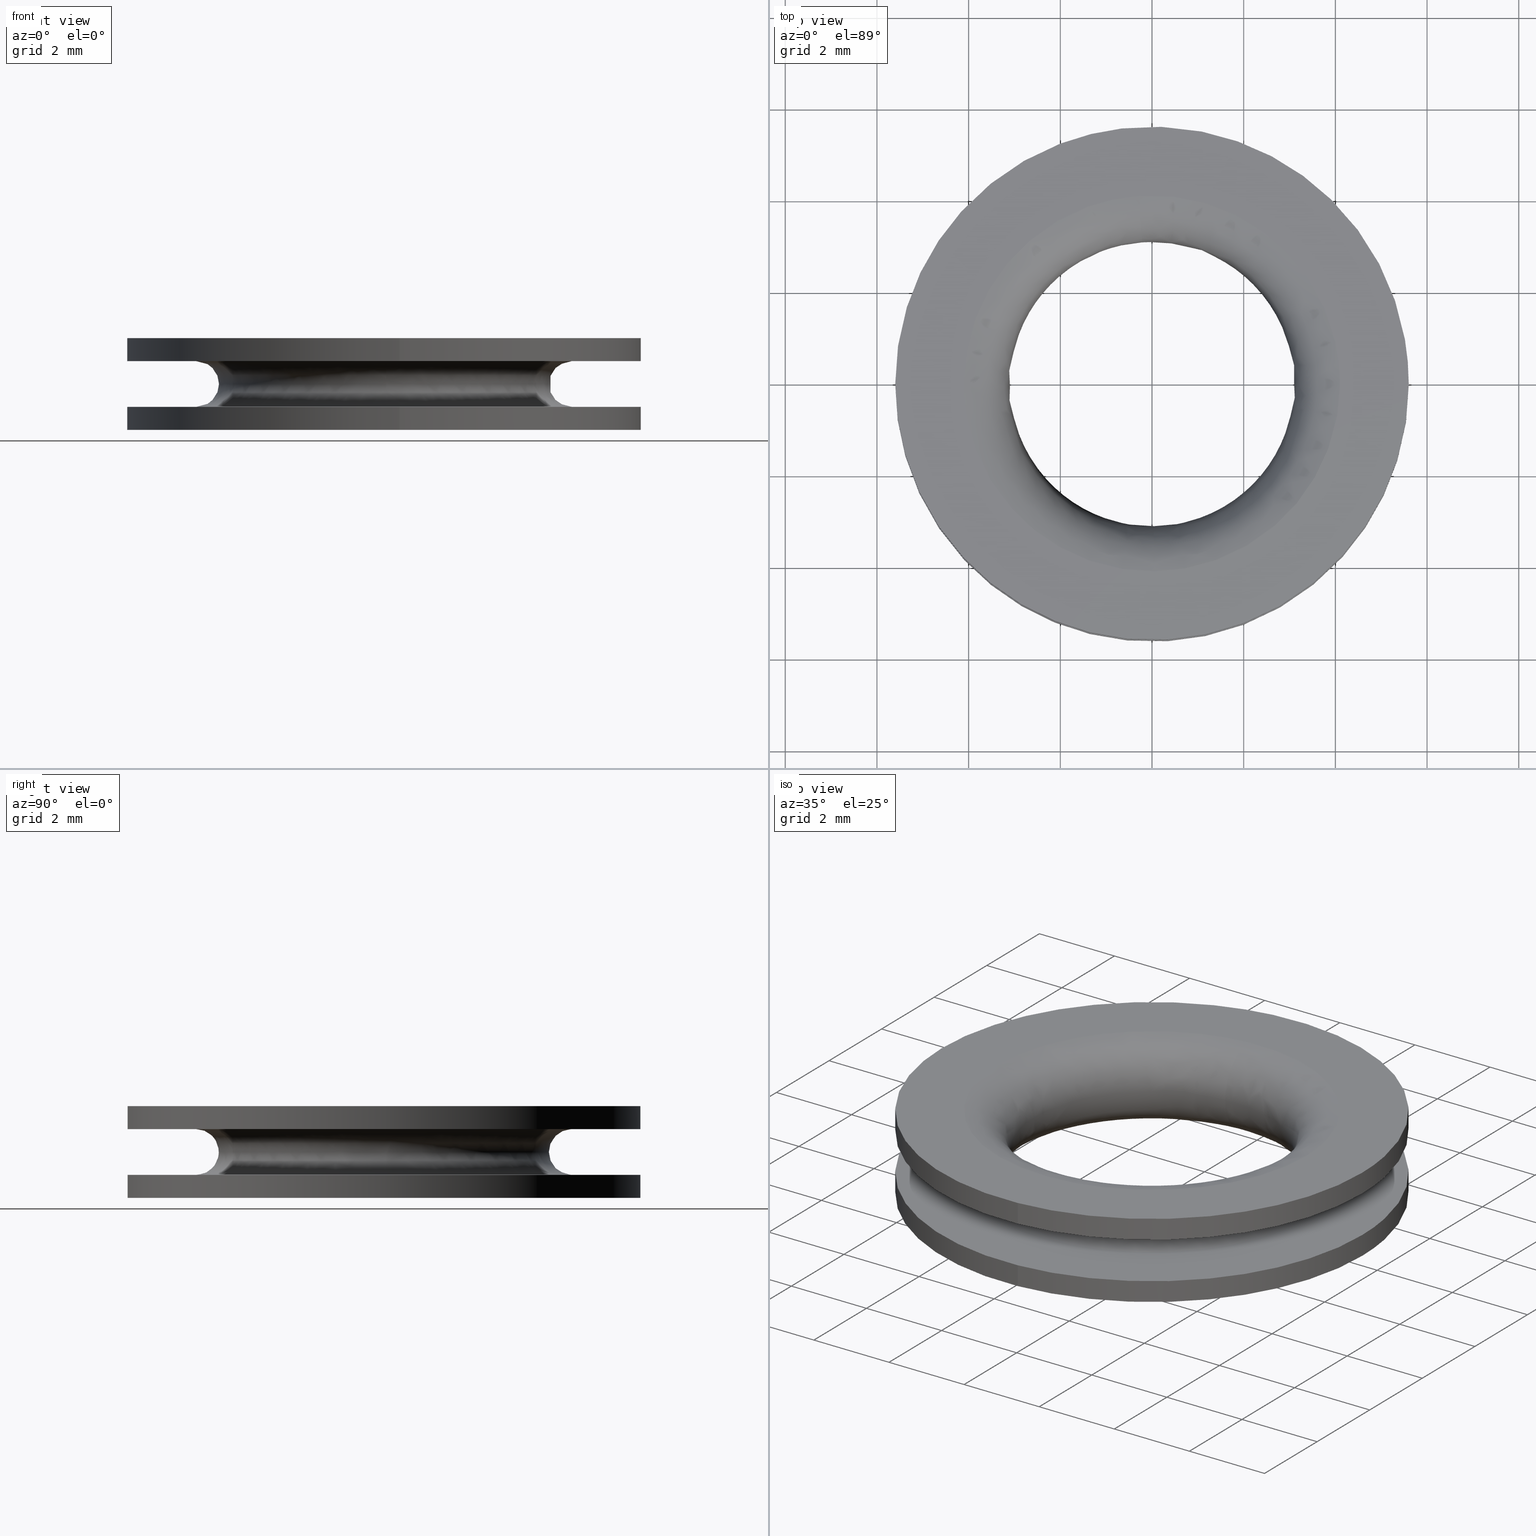
[diagram: canonical four-view strip — front | top / right | iso, engineering-drawing reading convention]
A machine part, canonical four-view strip (front | top / right | iso — engineering-drawing reading convention). The complete STEP part file that produces these views, byte-faithful:
ISO-10303-21;
HEADER;
/****************************************************************
 * Generated by software with PDE/Lib inside                    *
 * PDElib Version 4.4.1-0003, patched  Thursday August 19 11:58 *
 * International Technegroup Inc. (www.iti-oh.com)              *
 ****************************************************************/
FILE_DESCRIPTION((''),'2;1');
FILE_NAME('','2005-07-15T13:06:39',(''),(''),'','CADfix','');
FILE_SCHEMA(('AUTOMOTIVE_DESIGN'));
ENDSEC;
DATA;
#5=APPLICATION_CONTEXT('automotive design');
#6=APPLICATION_PROTOCOL_DEFINITION('Draft International Standard','automotive_design',1998,#5);
#7=PRODUCT_CONTEXT('None',#5,'mechanical');
#8=PRODUCT('grommet','','None',(#7));
#9=PRODUCT_RELATED_PRODUCT_CATEGORY('part','description',(#8));
#10=PRODUCT_DEFINITION_FORMATION('None','None',#8);
#11=PRODUCT_DEFINITION_CONTEXT('part definition',#5,'design');
#12=PRODUCT_DEFINITION('None','None',#10,#11);
#18=(NAMED_UNIT(*)PLANE_ANGLE_UNIT()SI_UNIT($,.RADIAN.));
#19=DIMENSIONAL_EXPONENTS(0.0,0.0,0.0,0.0,0.0,0.0,0.0);
#20=PLANE_ANGLE_MEASURE_WITH_UNIT(PLANE_ANGLE_MEASURE(0.017453292500000),#18);
#24=(CONVERSION_BASED_UNIT('DEGREE',#20)NAMED_UNIT(#19)PLANE_ANGLE_UNIT());
#28=(NAMED_UNIT(*)SI_UNIT($,.STERADIAN.)SOLID_ANGLE_UNIT());
#32=(LENGTH_UNIT()NAMED_UNIT(*)SI_UNIT(.MILLI.,.METRE.));
#34=UNCERTAINTY_MEASURE_WITH_UNIT(LENGTH_MEASURE(0.001000000000000),#32,'DISTANCE_ACCURACY_VALUE','');
#36=(GEOMETRIC_REPRESENTATION_CONTEXT(3)GLOBAL_UNCERTAINTY_ASSIGNED_CONTEXT((#34))GLOBAL_UNIT_ASSIGNED_CONTEXT((#24,#28,#32))REPRESENTATION_CONTEXT('None','None'));
#37=AXIS2_PLACEMENT_3D('',#38,#39,#40);
#38=CARTESIAN_POINT('',(0.0,0.0,0.0));
#39=DIRECTION('',(0.0,0.0,1.0));
#40=DIRECTION('',(1.0,0.0,0.0));
#41=ADVANCED_BREP_SHAPE_REPRESENTATION('',(#37,#973),#36);
#42=PRODUCT_DEFINITION_SHAPE('','',#12);
#43=SHAPE_DEFINITION_REPRESENTATION(#42,#41);
#44=CARTESIAN_POINT('',(-0.660991714077847,5.560853347636532,2.012500000000001));
#45=CARTESIAN_POINT('',(-0.501842480372675,5.579770646512191,2.012500000000000));
#46=CARTESIAN_POINT('',(-0.341871821395199,5.589554871162453,2.012500000000000));
#47=CARTESIAN_POINT('',(5.247683049767254,5.931426692557652,2.012500000000000));
#48=CARTESIAN_POINT('',(5.589554871162453,0.341871821395199,2.012500000000000));
#49=CARTESIAN_POINT('',(5.931426692557652,-5.247683049767254,2.012500000000000));
#50=CARTESIAN_POINT('',(0.341871821395199,-5.589554871162453,2.012500000000000));
#51=CARTESIAN_POINT('',(-0.660991714077847,5.560853347636532,1.487187500000000));
#52=CARTESIAN_POINT('',(-0.501842480372675,5.579770646512191,1.487187499999999));
#53=CARTESIAN_POINT('',(-0.341871821395199,5.589554871162453,1.487187500000000));
#54=CARTESIAN_POINT('',(5.247683049767254,5.931426692557652,1.487187499999999));
#55=CARTESIAN_POINT('',(5.589554871162453,0.341871821395199,1.487187500000000));
#56=CARTESIAN_POINT('',(5.931426692557652,-5.247683049767254,1.487187499999999));
#57=CARTESIAN_POINT('',(0.341871821395199,-5.589554871162453,1.487187500000000));
#65=(BOUNDED_SURFACE()B_SPLINE_SURFACE(2,1,((#44,#51),(#45,#52),(#46,#53),(#47,#54),(#48,#55),(#49,#56),(#50,#57)),.UNSPECIFIED.,.F.,.F.,.U.)B_SPLINE_SURFACE_WITH_KNOTS((3,2,2,3),(2,2),(0.0,0.371135351886293,9.649519149043620,18.927902946200948),(0.0,1.0),.UNSPECIFIED.)GEOMETRIC_REPRESENTATION_ITEM()RATIONAL_B_SPLINE_SURFACE(((0.977505800795127,0.977505800795127),(0.988284271247462,0.988284271247462),(1.0,1.0),(0.707106781186548,0.707106781186548),(1.0,1.0),(0.707106781186548,0.707106781186548),(1.0,1.0)))REPRESENTATION_ITEM('')SURFACE());
#66=CARTESIAN_POINT('',(-0.660988172948716,5.560853768551120,1.500000000000061));
#67=VERTEX_POINT('',#66);
#68=CARTESIAN_POINT('',(5.600000000000000,0.0,1.500000000000000));
#69=VERTEX_POINT('',#68);
#70=CARTESIAN_POINT('',(-0.660988172948716,5.560853768551120,1.500000000000060));
#71=CARTESIAN_POINT('',(-0.331653280768118,5.600000000000001,1.500000000000000));
#72=CARTESIAN_POINT('',(0.0,5.600000000000000,1.500000000000000));
#73=CARTESIAN_POINT('',(5.599999999999999,5.599999999999999,1.500000000000000));
#74=CARTESIAN_POINT('',(5.600000000000000,0.0,1.500000000000000));
#82=(BOUNDED_CURVE()B_SPLINE_CURVE(2,(#70,#71,#72,#73,#74),.UNSPECIFIED.,.F.,.U.)B_SPLINE_CURVE_WITH_KNOTS((3,2,3),(0.229562581136241,0.250000000000000,0.500000000000000),.UNSPECIFIED.)CURVE()GEOMETRIC_REPRESENTATION_ITEM()RATIONAL_B_SPLINE_CURVE((0.956026965128767,0.976056074419019,1.0,0.707106781186547,1.0))REPRESENTATION_ITEM(''));
#83=EDGE_CURVE('',#67,#69,#82,.T.);
#84=ORIENTED_EDGE('',*,*,#83,.F.);
#85=CARTESIAN_POINT('',(-0.660988216627040,5.560853763359345,2.0));
#86=VERTEX_POINT('',#85);
#87=CARTESIAN_POINT('',(-0.660988216627040,5.560853763359345,2.0));
#88=CARTESIAN_POINT('',(-0.660988172948716,5.560853768551120,1.500000000000061));
#89=QUASI_UNIFORM_CURVE('',1,(#87,#88),.UNSPECIFIED.,.F.,.U.);
#90=EDGE_CURVE('',#86,#67,#89,.T.);
#91=ORIENTED_EDGE('',*,*,#90,.F.);
#92=CARTESIAN_POINT('',(5.600000000000000,0.0,2.0));
#93=VERTEX_POINT('',#92);
#94=CARTESIAN_POINT('',(-0.660988216627040,5.560853763359345,2.000000000000000));
#95=CARTESIAN_POINT('',(-0.331653302838156,5.600000000000000,2.000000000000000));
#96=CARTESIAN_POINT('',(0.0,5.600000000000000,2.0));
#97=CARTESIAN_POINT('',(5.599999999999999,5.599999999999999,2.0));
#98=CARTESIAN_POINT('',(5.600000000000000,0.0,2.0));
#106=(BOUNDED_CURVE()B_SPLINE_CURVE(2,(#94,#95,#96,#97,#98),.UNSPECIFIED.,.F.,.U.)B_SPLINE_CURVE_WITH_KNOTS((3,2,3),(0.229562579808786,0.250000000000000,0.500000000000000),.UNSPECIFIED.)CURVE()GEOMETRIC_REPRESENTATION_ITEM()RATIONAL_B_SPLINE_CURVE((0.956026962526900,0.976056072863809,1.0,0.707106781186547,1.0))REPRESENTATION_ITEM(''));
#107=EDGE_CURVE('',#86,#93,#106,.T.);
#108=ORIENTED_EDGE('',*,*,#107,.T.);
#109=CARTESIAN_POINT('',(0.341869845843835,-5.589554991991651,2.0));
#110=VERTEX_POINT('',#109);
#111=CARTESIAN_POINT('',(5.600000000000000,0.0,2.0));
#112=CARTESIAN_POINT('',(5.600000000000000,-5.267955840037390,2.0));
#113=CARTESIAN_POINT('',(0.341869845843835,-5.589554991991651,2.0));
#121=(BOUNDED_CURVE()B_SPLINE_CURVE(2,(#111,#112,#113),.UNSPECIFIED.,.F.,.U.)B_SPLINE_CURVE_WITH_KNOTS((3,3),(0.500000000000000,0.739333023226263),.UNSPECIFIED.)CURVE()GEOMETRIC_REPRESENTATION_ITEM()RATIONAL_B_SPLINE_CURVE((1.0,0.719603921835620,0.976072172374189))REPRESENTATION_ITEM(''));
#122=EDGE_CURVE('',#93,#110,#121,.T.);
#123=ORIENTED_EDGE('',*,*,#122,.T.);
#124=CARTESIAN_POINT('',(0.341869821183099,-5.589554993499949,1.500000000000040));
#125=VERTEX_POINT('',#124);
#126=CARTESIAN_POINT('',(0.341869845843835,-5.589554991991651,2.0));
#127=CARTESIAN_POINT('',(0.341869821183099,-5.589554993499949,1.500000000000040));
#128=QUASI_UNIFORM_CURVE('',1,(#126,#127),.UNSPECIFIED.,.F.,.U.);
#129=EDGE_CURVE('',#110,#125,#128,.T.);
#130=ORIENTED_EDGE('',*,*,#129,.T.);
#131=CARTESIAN_POINT('',(5.600000000000000,0.0,1.500000000000000));
#132=CARTESIAN_POINT('',(5.600000000000001,-5.267955863322681,1.499999999999999));
#133=CARTESIAN_POINT('',(0.341869821183099,-5.589554993499949,1.500000000000040));
#141=(BOUNDED_CURVE()B_SPLINE_CURVE(2,(#131,#132,#133),.UNSPECIFIED.,.F.,.U.)B_SPLINE_CURVE_WITH_KNOTS((3,3),(0.500000000000000,0.739333023987528),.UNSPECIFIED.)CURVE()GEOMETRIC_REPRESENTATION_ITEM()RATIONAL_B_SPLINE_CURVE((1.0,0.719603920943743,0.976072174005725))REPRESENTATION_ITEM(''));
#142=EDGE_CURVE('',#69,#125,#141,.T.);
#143=ORIENTED_EDGE('',*,*,#142,.F.);
#144=EDGE_LOOP('',(#84,#91,#108,#123,#130,#143));
#145=FACE_OUTER_BOUND('',#144,.T.);
#146=ADVANCED_FACE('',(#145),#65,.T.);
#147=CARTESIAN_POINT('',(0.341871821395199,-5.589554871162453,2.012500000000000));
#148=CARTESIAN_POINT('',(-5.247683049767254,-5.931426692557652,2.012500000000000));
#149=CARTESIAN_POINT('',(-5.589554871162453,-0.341871821395199,2.012500000000000));
#150=CARTESIAN_POINT('',(-5.912402701702153,4.936643548701205,2.012500000000000));
#151=CARTESIAN_POINT('',(-0.660991714077847,5.560853347636532,2.012500000000001));
#152=CARTESIAN_POINT('',(0.341871821395199,-5.589554871162453,1.487187500000000));
#153=CARTESIAN_POINT('',(-5.247683049767254,-5.931426692557652,1.487187499999999));
#154=CARTESIAN_POINT('',(-5.589554871162453,-0.341871821395199,1.487187500000000));
#155=CARTESIAN_POINT('',(-5.912402701702153,4.936643548701205,1.487187500000000));
#156=CARTESIAN_POINT('',(-0.660991714077847,5.560853347636532,1.487187500000000));
#164=(BOUNDED_SURFACE()B_SPLINE_SURFACE(2,1,((#147,#152),(#148,#153),(#149,#154),(#150,#155),(#151,#156)),.UNSPECIFIED.,.F.,.F.,.U.)B_SPLINE_SURFACE_WITH_KNOTS((3,2,3),(2,2),(0.0,9.278383797157327,18.185632242428358),(0.0,1.0),.UNSPECIFIED.)GEOMETRIC_REPRESENTATION_ITEM()RATIONAL_B_SPLINE_SURFACE(((1.0,1.0),(0.707106781186548,0.707106781186548),(1.0,1.0),(0.718822509939086,0.718822509939086),(0.977505800795127,0.977505800795127)))REPRESENTATION_ITEM('')SURFACE());
#165=CARTESIAN_POINT('',(-5.600000000000000,0.0,1.500000000000000));
#166=VERTEX_POINT('',#165);
#167=CARTESIAN_POINT('',(-5.600000000000000,0.0,1.500000000000000));
#168=CARTESIAN_POINT('',(-5.600000000000000,4.973780534906465,1.500000000000000));
#169=CARTESIAN_POINT('',(-0.660988172948716,5.560853768551120,1.500000000000060));
#177=(BOUNDED_CURVE()B_SPLINE_CURVE(2,(#167,#168,#169),.UNSPECIFIED.,.F.,.U.)B_SPLINE_CURVE_WITH_KNOTS((3,3),(0.0,0.229562581136241),.UNSPECIFIED.)CURVE()GEOMETRIC_REPRESENTATION_ITEM()RATIONAL_B_SPLINE_CURVE((1.0,0.731050706767529,0.956026965128767))REPRESENTATION_ITEM(''));
#178=EDGE_CURVE('',#166,#67,#177,.T.);
#179=ORIENTED_EDGE('',*,*,#178,.F.);
#180=CARTESIAN_POINT('',(0.341869821183099,-5.589554993499949,1.500000000000040));
#181=CARTESIAN_POINT('',(0.171094471561875,-5.600000000000000,1.500000000000000));
#182=CARTESIAN_POINT('',(0.0,-5.600000000000000,1.500000000000000));
#183=CARTESIAN_POINT('',(-5.599999999999999,-5.599999999999999,1.500000000000000));
#184=CARTESIAN_POINT('',(-5.600000000000000,0.0,1.500000000000000));
#192=(BOUNDED_CURVE()B_SPLINE_CURVE(2,(#180,#181,#182,#183,#184),.UNSPECIFIED.,.F.,.U.)B_SPLINE_CURVE_WITH_KNOTS((3,2,3),(0.739333023987528,0.750000000000000,1.0),.UNSPECIFIED.)CURVE()GEOMETRIC_REPRESENTATION_ITEM()RATIONAL_B_SPLINE_CURVE((0.976072174005725,0.987502860242804,1.0,0.707106781186547,1.0))REPRESENTATION_ITEM(''));
#193=EDGE_CURVE('',#125,#166,#192,.T.);
#194=ORIENTED_EDGE('',*,*,#193,.F.);
#195=ORIENTED_EDGE('',*,*,#129,.F.);
#196=CARTESIAN_POINT('',(-5.600000000000000,0.0,2.0));
#197=VERTEX_POINT('',#196);
#198=CARTESIAN_POINT('',(0.341869845843835,-5.589554991991651,2.0));
#199=CARTESIAN_POINT('',(0.171094483926815,-5.600000000000000,2.000000000000000));
#200=CARTESIAN_POINT('',(0.0,-5.600000000000000,2.0));
#201=CARTESIAN_POINT('',(-5.599999999999999,-5.599999999999999,2.0));
#202=CARTESIAN_POINT('',(-5.600000000000000,0.0,2.0));
#210=(BOUNDED_CURVE()B_SPLINE_CURVE(2,(#198,#199,#200,#201,#202),.UNSPECIFIED.,.F.,.U.)B_SPLINE_CURVE_WITH_KNOTS((3,2,3),(0.739333023226263,0.750000000000000,1.0),.UNSPECIFIED.)CURVE()GEOMETRIC_REPRESENTATION_ITEM()RATIONAL_B_SPLINE_CURVE((0.976072172374189,0.987502859350927,1.0,0.707106781186547,1.0))REPRESENTATION_ITEM(''));
#211=EDGE_CURVE('',#110,#197,#210,.T.);
#212=ORIENTED_EDGE('',*,*,#211,.T.);
#213=CARTESIAN_POINT('',(-5.600000000000000,0.0,2.0));
#214=CARTESIAN_POINT('',(-5.599999999999999,4.973780495564358,2.000000000000000));
#215=CARTESIAN_POINT('',(-0.660988216627040,5.560853763359345,2.000000000000000));
#223=(BOUNDED_CURVE()B_SPLINE_CURVE(2,(#213,#214,#215),.UNSPECIFIED.,.F.,.U.)B_SPLINE_CURVE_WITH_KNOTS((3,3),(0.0,0.229562579808786),.UNSPECIFIED.)CURVE()GEOMETRIC_REPRESENTATION_ITEM()RATIONAL_B_SPLINE_CURVE((1.0,0.731050708322738,0.956026962526900))REPRESENTATION_ITEM(''));
#224=EDGE_CURVE('',#197,#86,#223,.T.);
#225=ORIENTED_EDGE('',*,*,#224,.T.);
#226=ORIENTED_EDGE('',*,*,#90,.T.);
#227=EDGE_LOOP('',(#179,#194,#195,#212,#225,#226));
#228=FACE_OUTER_BOUND('',#227,.T.);
#229=ADVANCED_FACE('',(#228),#164,.T.);
#230=CARTESIAN_POINT('',(-0.660991714077847,5.560853347636532,0.512500000000000));
#231=CARTESIAN_POINT('',(-0.501842480372675,5.579770646512191,0.512500000000000));
#232=CARTESIAN_POINT('',(-0.341871821395199,5.589554871162453,0.512500000000000));
#233=CARTESIAN_POINT('',(5.247683049767254,5.931426692557652,0.512500000000000));
#234=CARTESIAN_POINT('',(5.589554871162453,0.341871821395199,0.512500000000000));
#235=CARTESIAN_POINT('',(5.931426692557652,-5.247683049767254,0.512500000000000));
#236=CARTESIAN_POINT('',(0.341871821395199,-5.589554871162453,0.512500000000000));
#237=CARTESIAN_POINT('',(-0.660991714077847,5.560853347636532,-0.012812500000000));
#238=CARTESIAN_POINT('',(-0.501842480372675,5.579770646512191,-0.012812500000000));
#239=CARTESIAN_POINT('',(-0.341871821395199,5.589554871162453,-0.012812500000000));
#240=CARTESIAN_POINT('',(5.247683049767254,5.931426692557652,-0.012812500000000));
#241=CARTESIAN_POINT('',(5.589554871162453,0.341871821395199,-0.012812500000000));
#242=CARTESIAN_POINT('',(5.931426692557652,-5.247683049767254,-0.012812500000000));
#243=CARTESIAN_POINT('',(0.341871821395199,-5.589554871162453,-0.012812500000000));
#251=(BOUNDED_SURFACE()B_SPLINE_SURFACE(2,1,((#230,#237),(#231,#238),(#232,#239),(#233,#240),(#234,#241),(#235,#242),(#236,#243)),.UNSPECIFIED.,.F.,.F.,.U.)B_SPLINE_SURFACE_WITH_KNOTS((3,2,2,3),(2,2),(0.0,0.371135351886293,9.649519149043620,18.927902946200948),(0.0,1.0),.UNSPECIFIED.)GEOMETRIC_REPRESENTATION_ITEM()RATIONAL_B_SPLINE_SURFACE(((0.977505800795127,0.977505800795127),(0.988284271247462,0.988284271247462),(1.0,1.0),(0.707106781186548,0.707106781186548),(1.0,1.0),(0.707106781186548,0.707106781186548),(1.0,1.0)))REPRESENTATION_ITEM('')SURFACE());
#252=CARTESIAN_POINT('',(-0.660988173988058,5.560853768427579,0.499999999999939));
#253=VERTEX_POINT('',#252);
#254=CARTESIAN_POINT('',(5.600000000000000,0.0,0.500000000000000));
#255=VERTEX_POINT('',#254);
#256=CARTESIAN_POINT('',(-0.660988173988058,5.560853768427579,0.499999999999939));
#257=CARTESIAN_POINT('',(-0.331653281293282,5.600000000000001,0.500000000000000));
#258=CARTESIAN_POINT('',(0.0,5.600000000000000,0.500000000000000));
#259=CARTESIAN_POINT('',(5.599999999999999,5.599999999999999,0.500000000000000));
#260=CARTESIAN_POINT('',(5.600000000000000,0.0,0.500000000000000));
#268=(BOUNDED_CURVE()B_SPLINE_CURVE(2,(#256,#257,#258,#259,#260),.UNSPECIFIED.,.F.,.U.)B_SPLINE_CURVE_WITH_KNOTS((3,2,3),(0.229562581104653,0.250000000000000,0.500000000000000),.UNSPECIFIED.)CURVE()GEOMETRIC_REPRESENTATION_ITEM()RATIONAL_B_SPLINE_CURVE((0.956026965066855,0.976056074382012,1.0,0.707106781186547,1.0))REPRESENTATION_ITEM(''));
#269=EDGE_CURVE('',#253,#255,#268,.T.);
#270=ORIENTED_EDGE('',*,*,#269,.T.);
#271=CARTESIAN_POINT('',(0.341869821769910,-5.589554993464057,0.499999999999960));
#272=VERTEX_POINT('',#271);
#273=CARTESIAN_POINT('',(5.600000000000000,0.0,0.500000000000000));
#274=CARTESIAN_POINT('',(5.599999999999999,-5.267955862768601,0.500000000000000));
#275=CARTESIAN_POINT('',(0.341869821769910,-5.589554993464057,0.499999999999960));
#283=(BOUNDED_CURVE()B_SPLINE_CURVE(2,(#273,#274,#275),.UNSPECIFIED.,.F.,.U.)B_SPLINE_CURVE_WITH_KNOTS((3,3),(0.500000000000000,0.739333023969413),.UNSPECIFIED.)CURVE()GEOMETRIC_REPRESENTATION_ITEM()RATIONAL_B_SPLINE_CURVE((1.0,0.719603920964966,0.976072173966902))REPRESENTATION_ITEM(''));
#284=EDGE_CURVE('',#255,#272,#283,.T.);
#285=ORIENTED_EDGE('',*,*,#284,.T.);
#286=CARTESIAN_POINT('',(0.341869845843835,-5.589554991991651,2.602085E-018));
#287=VERTEX_POINT('',#286);
#288=CARTESIAN_POINT('',(0.341869821769910,-5.589554993464057,0.499999999999960));
#289=CARTESIAN_POINT('',(0.341869845843835,-5.589554991991651,2.602085E-018));
#290=QUASI_UNIFORM_CURVE('',1,(#288,#289),.UNSPECIFIED.,.F.,.U.);
#291=EDGE_CURVE('',#272,#287,#290,.T.);
#292=ORIENTED_EDGE('',*,*,#291,.T.);
#293=CARTESIAN_POINT('',(5.600000000000000,0.0,0.0));
#294=VERTEX_POINT('',#293);
#295=CARTESIAN_POINT('',(5.600000000000000,0.0,0.0));
#296=CARTESIAN_POINT('',(5.600000000000000,-5.267955840037390,0.0));
#297=CARTESIAN_POINT('',(0.341869845843835,-5.589554991991651,2.602085E-018));
#305=(BOUNDED_CURVE()B_SPLINE_CURVE(2,(#295,#296,#297),.UNSPECIFIED.,.F.,.U.)B_SPLINE_CURVE_WITH_KNOTS((3,3),(0.500000000000000,0.739333023226263),.UNSPECIFIED.)CURVE()GEOMETRIC_REPRESENTATION_ITEM()RATIONAL_B_SPLINE_CURVE((1.0,0.719603921835620,0.976072172374189))REPRESENTATION_ITEM(''));
#306=EDGE_CURVE('',#294,#287,#305,.T.);
#307=ORIENTED_EDGE('',*,*,#306,.F.);
#308=CARTESIAN_POINT('',(-0.660988216627040,5.560853763359345,-2.573232E-017));
#309=VERTEX_POINT('',#308);
#310=CARTESIAN_POINT('',(-0.660988216627040,5.560853763359345,-2.573232E-017));
#311=CARTESIAN_POINT('',(-0.331653302838156,5.600000000000000,0.0));
#312=CARTESIAN_POINT('',(0.0,5.600000000000000,0.0));
#313=CARTESIAN_POINT('',(5.599999999999999,5.599999999999999,0.0));
#314=CARTESIAN_POINT('',(5.600000000000000,0.0,0.0));
#322=(BOUNDED_CURVE()B_SPLINE_CURVE(2,(#310,#311,#312,#313,#314),.UNSPECIFIED.,.F.,.U.)B_SPLINE_CURVE_WITH_KNOTS((3,2,3),(0.229562579808786,0.250000000000000,0.500000000000000),.UNSPECIFIED.)CURVE()GEOMETRIC_REPRESENTATION_ITEM()RATIONAL_B_SPLINE_CURVE((0.956026962526900,0.976056072863809,1.0,0.707106781186547,1.0))REPRESENTATION_ITEM(''));
#323=EDGE_CURVE('',#309,#294,#322,.T.);
#324=ORIENTED_EDGE('',*,*,#323,.F.);
#325=CARTESIAN_POINT('',(-0.660988173988058,5.560853768427579,0.499999999999939));
#326=CARTESIAN_POINT('',(-0.660988216627040,5.560853763359345,-2.573232E-017));
#327=QUASI_UNIFORM_CURVE('',1,(#325,#326),.UNSPECIFIED.,.F.,.U.);
#328=EDGE_CURVE('',#253,#309,#327,.T.);
#329=ORIENTED_EDGE('',*,*,#328,.F.);
#330=EDGE_LOOP('',(#270,#285,#292,#307,#324,#329));
#331=FACE_OUTER_BOUND('',#330,.T.);
#332=ADVANCED_FACE('',(#331),#251,.T.);
#333=CARTESIAN_POINT('',(0.341871821395199,-5.589554871162453,0.512500000000000));
#334=CARTESIAN_POINT('',(-5.247683049767254,-5.931426692557652,0.512500000000000));
#335=CARTESIAN_POINT('',(-5.589554871162453,-0.341871821395199,0.512500000000000));
#336=CARTESIAN_POINT('',(-5.912402701702153,4.936643548701205,0.512500000000000));
#337=CARTESIAN_POINT('',(-0.660991714077847,5.560853347636532,0.512500000000000));
#338=CARTESIAN_POINT('',(0.341871821395199,-5.589554871162453,-0.012812500000000));
#339=CARTESIAN_POINT('',(-5.247683049767254,-5.931426692557652,-0.012812500000000));
#340=CARTESIAN_POINT('',(-5.589554871162453,-0.341871821395199,-0.012812500000000));
#341=CARTESIAN_POINT('',(-5.912402701702153,4.936643548701205,-0.012812500000000));
#342=CARTESIAN_POINT('',(-0.660991714077847,5.560853347636532,-0.012812500000000));
#350=(BOUNDED_SURFACE()B_SPLINE_SURFACE(2,1,((#333,#338),(#334,#339),(#335,#340),(#336,#341),(#337,#342)),.UNSPECIFIED.,.F.,.F.,.U.)B_SPLINE_SURFACE_WITH_KNOTS((3,2,3),(2,2),(0.0,9.278383797157327,18.185632242428358),(0.0,1.0),.UNSPECIFIED.)GEOMETRIC_REPRESENTATION_ITEM()RATIONAL_B_SPLINE_SURFACE(((1.0,1.0),(0.707106781186548,0.707106781186548),(1.0,1.0),(0.718822509939086,0.718822509939086),(0.977505800795127,0.977505800795127)))REPRESENTATION_ITEM('')SURFACE());
#351=CARTESIAN_POINT('',(-5.600000000000000,0.0,0.500000000000000));
#352=VERTEX_POINT('',#351);
#353=CARTESIAN_POINT('',(-5.600000000000000,0.0,0.500000000000000));
#354=CARTESIAN_POINT('',(-5.600000000000000,4.973780533970307,0.500000000000000));
#355=CARTESIAN_POINT('',(-0.660988173988058,5.560853768427579,0.499999999999939));
#363=(BOUNDED_CURVE()B_SPLINE_CURVE(2,(#353,#354,#355),.UNSPECIFIED.,.F.,.U.)B_SPLINE_CURVE_WITH_KNOTS((3,3),(0.0,0.229562581104653),.UNSPECIFIED.)CURVE()GEOMETRIC_REPRESENTATION_ITEM()RATIONAL_B_SPLINE_CURVE((1.0,0.731050706804535,0.956026965066855))REPRESENTATION_ITEM(''));
#364=EDGE_CURVE('',#352,#253,#363,.T.);
#365=ORIENTED_EDGE('',*,*,#364,.T.);
#366=ORIENTED_EDGE('',*,*,#328,.T.);
#367=CARTESIAN_POINT('',(-5.600000000000000,0.0,0.0));
#368=VERTEX_POINT('',#367);
#369=CARTESIAN_POINT('',(-5.600000000000000,0.0,0.0));
#370=CARTESIAN_POINT('',(-5.599999999999999,4.973780495564358,0.0));
#371=CARTESIAN_POINT('',(-0.660988216627040,5.560853763359345,-2.573232E-017));
#379=(BOUNDED_CURVE()B_SPLINE_CURVE(2,(#369,#370,#371),.UNSPECIFIED.,.F.,.U.)B_SPLINE_CURVE_WITH_KNOTS((3,3),(0.0,0.229562579808786),.UNSPECIFIED.)CURVE()GEOMETRIC_REPRESENTATION_ITEM()RATIONAL_B_SPLINE_CURVE((1.0,0.731050708322738,0.956026962526900))REPRESENTATION_ITEM(''));
#380=EDGE_CURVE('',#368,#309,#379,.T.);
#381=ORIENTED_EDGE('',*,*,#380,.F.);
#382=CARTESIAN_POINT('',(0.341869845843835,-5.589554991991651,2.602085E-018));
#383=CARTESIAN_POINT('',(0.171094483926815,-5.600000000000000,0.0));
#384=CARTESIAN_POINT('',(0.0,-5.600000000000000,0.0));
#385=CARTESIAN_POINT('',(-5.599999999999999,-5.599999999999999,0.0));
#386=CARTESIAN_POINT('',(-5.600000000000000,0.0,0.0));
#394=(BOUNDED_CURVE()B_SPLINE_CURVE(2,(#382,#383,#384,#385,#386),.UNSPECIFIED.,.F.,.U.)B_SPLINE_CURVE_WITH_KNOTS((3,2,3),(0.739333023226263,0.750000000000000,1.0),.UNSPECIFIED.)CURVE()GEOMETRIC_REPRESENTATION_ITEM()RATIONAL_B_SPLINE_CURVE((0.976072172374189,0.987502859350927,1.0,0.707106781186547,1.0))REPRESENTATION_ITEM(''));
#395=EDGE_CURVE('',#287,#368,#394,.T.);
#396=ORIENTED_EDGE('',*,*,#395,.F.);
#397=ORIENTED_EDGE('',*,*,#291,.F.);
#398=CARTESIAN_POINT('',(0.341869821769910,-5.589554993464057,0.499999999999960));
#399=CARTESIAN_POINT('',(0.171094471856103,-5.600000000000000,0.500000000000000));
#400=CARTESIAN_POINT('',(0.0,-5.600000000000000,0.500000000000000));
#401=CARTESIAN_POINT('',(-5.599999999999999,-5.599999999999999,0.500000000000000));
#402=CARTESIAN_POINT('',(-5.600000000000000,0.0,0.500000000000000));
#410=(BOUNDED_CURVE()B_SPLINE_CURVE(2,(#398,#399,#400,#401,#402),.UNSPECIFIED.,.F.,.U.)B_SPLINE_CURVE_WITH_KNOTS((3,2,3),(0.739333023969413,0.750000000000000,1.0),.UNSPECIFIED.)CURVE()GEOMETRIC_REPRESENTATION_ITEM()RATIONAL_B_SPLINE_CURVE((0.976072173966902,0.987502860221582,1.0,0.707106781186547,1.0))REPRESENTATION_ITEM(''));
#411=EDGE_CURVE('',#272,#352,#410,.T.);
#412=ORIENTED_EDGE('',*,*,#411,.T.);
#413=EDGE_LOOP('',(#365,#366,#381,#396,#397,#412));
#414=FACE_OUTER_BOUND('',#413,.T.);
#415=ADVANCED_FACE('',(#414),#350,.T.);
#416=CARTESIAN_POINT('',(-0.290855226151915,4.160818738616091,0.505062688153478));
#417=CARTESIAN_POINT('',(-0.171774496371961,4.169142882196065,0.505062688153478));
#418=CARTESIAN_POINT('',(-0.052412603386656,4.170642906939517,0.505062688153478));
#419=CARTESIAN_POINT('',(4.118230303552861,4.223055510326171,0.505062688153478));
#420=CARTESIAN_POINT('',(4.170642906939517,0.052412603386656,0.505062688153478));
#421=CARTESIAN_POINT('',(4.223055510326173,-4.118230303552861,0.505062688153478));
#422=CARTESIAN_POINT('',(0.052412603386652,-4.170642906939517,0.505062688153478));
#423=CARTESIAN_POINT('',(-0.251039507473383,3.591236439680282,0.423187325236650));
#424=CARTESIAN_POINT('',(-0.148259962649537,3.598421075597268,0.423187325236650));
#425=CARTESIAN_POINT('',(-0.045237743580071,3.599715759133736,0.423187325236650));
#426=CARTESIAN_POINT('',(3.554478015553665,3.644953502713806,0.423187325236650));
#427=CARTESIAN_POINT('',(3.599715759133736,0.045237743580071,0.423187325236650));
#428=CARTESIAN_POINT('',(3.644953502713806,-3.554478015553665,0.423187325236650));
#429=CARTESIAN_POINT('',(0.045237743580068,-3.599715759133736,0.423187325236650));
#430=CARTESIAN_POINT('',(-0.251039507473383,3.591236439680283,1.000000000000000));
#431=CARTESIAN_POINT('',(-0.148259962649537,3.598421075597270,1.000000000000000));
#432=CARTESIAN_POINT('',(-0.045237743580071,3.599715759133737,1.000000000000000));
#433=CARTESIAN_POINT('',(3.554478015553666,3.644953502713807,1.000000000000000));
#434=CARTESIAN_POINT('',(3.599715759133737,0.045237743580071,1.000000000000000));
#435=CARTESIAN_POINT('',(3.644953502713809,-3.554478015553666,1.000000000000000));
#436=CARTESIAN_POINT('',(0.045237743580068,-3.599715759133737,1.000000000000000));
#437=CARTESIAN_POINT('',(-0.251039507473383,3.591236439680282,1.576812168740093));
#438=CARTESIAN_POINT('',(-0.148259962649537,3.598421075597269,1.576812168740094));
#439=CARTESIAN_POINT('',(-0.045237743580071,3.599715759133738,1.576812168740092));
#440=CARTESIAN_POINT('',(3.554478015553665,3.644953502713808,1.576812168740093));
#441=CARTESIAN_POINT('',(3.599715759133738,0.045237743580071,1.576812168740092));
#442=CARTESIAN_POINT('',(3.644953502713808,-3.554478015553665,1.576812168740093));
#443=CARTESIAN_POINT('',(0.045237743580068,-3.599715759133738,1.576812168740092));
#444=CARTESIAN_POINT('',(-0.290855196180594,4.160818309862460,1.494937373478092));
#445=CARTESIAN_POINT('',(-0.171774478671373,4.169142452584667,1.494937373478091));
#446=CARTESIAN_POINT('',(-0.052412597985773,4.170642477173550,1.494937373478092));
#447=CARTESIAN_POINT('',(4.118229879187775,4.223055075159323,1.494937373478091));
#448=CARTESIAN_POINT('',(4.170642477173550,0.052412597985773,1.494937373478092));
#449=CARTESIAN_POINT('',(4.223055075159324,-4.118229879187775,1.494937373478091));
#450=CARTESIAN_POINT('',(0.052412597985770,-4.170642477173550,1.494937373478092));
#458=(BOUNDED_SURFACE()B_SPLINE_SURFACE(2,2,((#416,#423,#430,#437,#444),(#417,#424,#431,#438,#445),(#418,#425,#432,#439,#446),(#419,#426,#433,#440,#447),(#420,#427,#434,#441,#448),(#421,#428,#435,#442,#449),(#422,#429,#436,#443,#450)),.UNSPECIFIED.,.F.,.F.,.U.)B_SPLINE_SURFACE_WITH_KNOTS((3,2,2,3),(3,2,3),(0.0,0.276427458888019,7.187120521638964,14.097813584389909),(0.0,0.913128923017007,1.826257325108353),.UNSPECIFIED.)GEOMETRIC_REPRESENTATION_ITEM()RATIONAL_B_SPLINE_SURFACE(((0.963495349575519,0.635663375772001,0.977505821353428,0.635663570787730,0.963494975529786),(0.974119324273980,0.642672513516065,0.988284282420452,0.642672710682134,0.974118946103835),(0.985667121901626,0.650291140866945,1.0,0.650291340370339,0.985666739248424),(0.696971905889267,0.459825275452553,0.707106781186548,0.459825416522756,0.696971635312593),(0.985667121901626,0.650291140866945,1.0,0.650291340370339,0.985666739248424),(0.696971905889267,0.459825275452553,0.707106781186548,0.459825416522756,0.696971635312593),(0.985667121901626,0.650291140866945,1.0,0.650291340370339,0.985666739248424)))REPRESENTATION_ITEM('')SURFACE());
#459=CARTESIAN_POINT('',(-0.285905274870642,4.090019805897416,1.499999999999586));
#460=VERTEX_POINT('',#459);
#461=CARTESIAN_POINT('',(4.100000026179941,0.0,1.500000000000000));
#462=VERTEX_POINT('',#461);
#463=CARTESIAN_POINT('',(-0.285905274870642,4.090019805897416,1.499999999999586));
#464=CARTESIAN_POINT('',(-0.143126829388823,4.100000026179941,1.500000000000000));
#465=CARTESIAN_POINT('',(0.0,4.100000026179941,1.500000000000000));
#466=CARTESIAN_POINT('',(4.100000026179941,4.100000026179941,1.500000000000000));
#467=CARTESIAN_POINT('',(4.100000026179941,0.0,1.500000000000000));
#475=(BOUNDED_CURVE()B_SPLINE_CURVE(2,(#463,#464,#465,#466,#467),.UNSPECIFIED.,.F.,.U.)B_SPLINE_CURVE_WITH_KNOTS((3,2,3),(0.237833732336683,0.250000000000000,0.500000000000000),.UNSPECIFIED.)CURVE()GEOMETRIC_REPRESENTATION_ITEM()RATIONAL_B_SPLINE_CURVE((0.972879973261308,0.985746330812580,1.0,0.707106781186547,1.0))REPRESENTATION_ITEM(''));
#476=EDGE_CURVE('',#460,#462,#475,.T.);
#477=ORIENTED_EDGE('',*,*,#476,.T.);
#478=CARTESIAN_POINT('',(0.051518775183676,-4.099674805015911,1.499999999995414));
#479=VERTEX_POINT('',#478);
#480=CARTESIAN_POINT('',(4.100000026179941,0.0,1.500000000000000));
#481=CARTESIAN_POINT('',(4.100000016584450,-4.048800120087916,1.499999999997707));
#482=CARTESIAN_POINT('',(0.051518775183677,-4.099674805015911,1.499999999995415));
#490=(BOUNDED_CURVE()B_SPLINE_CURVE(2,(#480,#481,#482),.UNSPECIFIED.,.F.,.U.)B_SPLINE_CURVE_WITH_KNOTS((3,3),(0.500000000000000,0.747784380407908),.UNSPECIFIED.)CURVE()GEOMETRIC_REPRESENTATION_ITEM()RATIONAL_B_SPLINE_CURVE((1.0,0.709702541002524,0.994854490098484))REPRESENTATION_ITEM(''));
#491=EDGE_CURVE('',#462,#479,#490,.T.);
#492=ORIENTED_EDGE('',*,*,#491,.T.);
#493=CARTESIAN_POINT('',(0.051520763523961,-4.099676281233791,0.500000000000000));
#494=VERTEX_POINT('',#493);
#495=CARTESIAN_POINT('',(0.051520763523961,-4.099676281233791,0.500000000000000));
#496=CARTESIAN_POINT('',(0.045237743580853,-3.599715759135555,0.500000000003654));
#497=CARTESIAN_POINT('',(0.045236758842057,-3.599715771509885,0.999999999998834));
#498=CARTESIAN_POINT('',(0.045235774106219,-3.599715783884178,1.499998498911208));
#499=CARTESIAN_POINT('',(0.051518775183676,-4.099674805015912,1.499999999995415));
#507=(BOUNDED_CURVE()B_SPLINE_CURVE(2,(#495,#496,#497,#498,#499),.UNSPECIFIED.,.F.,.U.)B_SPLINE_CURVE_WITH_KNOTS((3,2,3),(-3.781082537398954,-2.0,-0.218921109620307),.UNSPECIFIED.)CURVE()GEOMETRIC_REPRESENTATION_ITEM()RATIONAL_B_SPLINE_CURVE((0.930396133920977,0.682054299131593,1.0,0.682054950170537,0.930395116893050))REPRESENTATION_ITEM(''));
#508=EDGE_CURVE('',#494,#479,#507,.T.);
#509=ORIENTED_EDGE('',*,*,#508,.F.);
#510=CARTESIAN_POINT('',(4.100000000000001,0.0,0.500000000000000));
#511=VERTEX_POINT('',#510);
#512=CARTESIAN_POINT('',(4.100000000000001,0.0,0.500000000000000));
#513=CARTESIAN_POINT('',(4.100000000000001,-4.048798912615563,0.500000000000000));
#514=CARTESIAN_POINT('',(0.051520763523961,-4.099676281233791,0.500000000000000));
#522=(BOUNDED_CURVE()B_SPLINE_CURVE(2,(#512,#513,#514),.UNSPECIFIED.,.F.,.U.)B_SPLINE_CURVE_WITH_KNOTS((3,3),(0.500000000000000,0.747784295921536),.UNSPECIFIED.)CURVE()GEOMETRIC_REPRESENTATION_ITEM()RATIONAL_B_SPLINE_CURVE((1.0,0.709702639984465,0.994854295643570))REPRESENTATION_ITEM(''));
#523=EDGE_CURVE('',#511,#494,#522,.T.);
#524=ORIENTED_EDGE('',*,*,#523,.F.);
#525=CARTESIAN_POINT('',(-0.285905300905714,4.090020177473202,0.500000000001413));
#526=VERTEX_POINT('',#525);
#527=CARTESIAN_POINT('',(-0.285905300905714,4.090020177473202,0.500000000001413));
#528=CARTESIAN_POINT('',(-0.143126828505247,4.100000000000001,0.500000000000000));
#529=CARTESIAN_POINT('',(0.0,4.100000000000001,0.500000000000000));
#530=CARTESIAN_POINT('',(4.100000000000001,4.100000000000001,0.500000000000000));
#531=CARTESIAN_POINT('',(4.100000000000001,0.0,0.500000000000000));
#539=(BOUNDED_CURVE()B_SPLINE_CURVE(2,(#527,#528,#529,#530,#531),.UNSPECIFIED.,.F.,.U.)B_SPLINE_CURVE_WITH_KNOTS((3,2,3),(0.237833732334141,0.250000000000000,0.500000000000000),.UNSPECIFIED.)CURVE()GEOMETRIC_REPRESENTATION_ITEM()RATIONAL_B_SPLINE_CURVE((0.972879973255931,0.985746330809602,1.0,0.707106781186547,1.0))REPRESENTATION_ITEM(''));
#540=EDGE_CURVE('',#526,#511,#539,.T.);
#541=ORIENTED_EDGE('',*,*,#540,.F.);
#542=CARTESIAN_POINT('',(-0.285905300905714,4.090020177473202,0.500000000001413));
#543=CARTESIAN_POINT('',(-0.251038616497653,3.591236501962538,0.499999159363168));
#544=CARTESIAN_POINT('',(-0.251038616467476,3.591236501964684,1.000000000000256));
#545=CARTESIAN_POINT('',(-0.251038616437299,3.591236501966830,1.500000468150025));
#546=CARTESIAN_POINT('',(-0.285905274870642,4.090019805897416,1.499999999999586));
#554=(BOUNDED_CURVE()B_SPLINE_CURVE(2,(#542,#543,#544,#545,#546),.UNSPECIFIED.,.F.,.U.)B_SPLINE_CURVE_WITH_KNOTS((3,2,3),(-3.781084579811299,-2.0,-0.218916325179411),.UNSPECIFIED.)CURVE()GEOMETRIC_REPRESENTATION_ITEM()RATIONAL_B_SPLINE_CURVE((0.909468174693766,0.666711677463322,0.977505800795127,0.666711835381591,0.909467927998859))REPRESENTATION_ITEM(''));
#555=EDGE_CURVE('',#526,#460,#554,.T.);
#556=ORIENTED_EDGE('',*,*,#555,.T.);
#557=EDGE_LOOP('',(#477,#492,#509,#524,#541,#556));
#558=FACE_OUTER_BOUND('',#557,.T.);
#559=ADVANCED_FACE('',(#558),#458,.F.);
#560=CARTESIAN_POINT('',(0.052412603386655,-4.170642906939517,0.505062688153478));
#561=CARTESIAN_POINT('',(-4.118230303552861,-4.223055510326171,0.505062688153478));
#562=CARTESIAN_POINT('',(-4.170642906939517,-0.052412603386655,0.505062688153478));
#563=CARTESIAN_POINT('',(-4.220138929241859,3.886148372379451,0.505062688153478));
#564=CARTESIAN_POINT('',(-0.290855455785034,4.160818722563958,0.505062688153478));
#565=CARTESIAN_POINT('',(0.045237743580070,-3.599715759133736,0.423187325236650));
#566=CARTESIAN_POINT('',(-3.554478015553665,-3.644953502713806,0.423187325236650));
#567=CARTESIAN_POINT('',(-3.599715759133736,-0.045237743580070,0.423187325236650));
#568=CARTESIAN_POINT('',(-3.642436177896925,3.354166216222907,0.423187325236650));
#569=CARTESIAN_POINT('',(-0.251039705671593,3.591236425825555,0.423187325236650));
#570=CARTESIAN_POINT('',(0.045237743580070,-3.599715759133737,1.000000000000000));
#571=CARTESIAN_POINT('',(-3.554478015553666,-3.644953502713807,1.000000000000000));
#572=CARTESIAN_POINT('',(-3.599715759133737,-0.045237743580070,1.000000000000000));
#573=CARTESIAN_POINT('',(-3.642436177896926,3.354166216222908,1.000000000000000));
#574=CARTESIAN_POINT('',(-0.251039705671593,3.591236425825556,1.000000000000000));
#575=CARTESIAN_POINT('',(0.045237743580070,-3.599715759133738,1.576812168740092));
#576=CARTESIAN_POINT('',(-3.554478015553665,-3.644953502713808,1.576812168740093));
#577=CARTESIAN_POINT('',(-3.599715759133738,-0.045237743580070,1.576812168740092));
#578=CARTESIAN_POINT('',(-3.642436177896926,3.354166216222908,1.576812168740093));
#579=CARTESIAN_POINT('',(-0.251039705671593,3.591236425825556,1.576812168740094));
#580=CARTESIAN_POINT('',(0.052412597985772,-4.170642477173550,1.494937373478092));
#581=CARTESIAN_POINT('',(-4.118229879187777,-4.223055075159320,1.494937373478091));
#582=CARTESIAN_POINT('',(-4.170642477173550,-0.052412597985773,1.494937373478092));
#583=CARTESIAN_POINT('',(-4.220138494375550,3.886147971929364,1.494937373478091));
#584=CARTESIAN_POINT('',(-0.290855425813689,4.160818293810328,1.494937373478091));
#592=(BOUNDED_SURFACE()B_SPLINE_SURFACE(2,2,((#560,#565,#570,#575,#580),(#561,#566,#571,#576,#581),(#562,#567,#572,#577,#582),(#563,#568,#573,#578,#583),(#564,#569,#574,#579,#584)),.UNSPECIFIED.,.F.,.F.,.U.)B_SPLINE_SURFACE_WITH_KNOTS((3,2,3),(3,2,3),(0.0,6.910693062750945,13.544958402991851),(0.0,0.913128923017008,1.826257325108354),.UNSPECIFIED.)GEOMETRIC_REPRESENTATION_ITEM()RATIONAL_B_SPLINE_SURFACE(((0.985667121901626,0.650291140866945,1.0,0.650291340370339,0.985666739248424),(0.696971905889267,0.459825275452553,0.707106781186548,0.459825416522756,0.696971635312593),(0.985667121901626,0.650291140866945,1.0,0.650291340370339,0.985666739248424),(0.708519714529762,0.467443910069129,0.718822509939086,0.467444053476659,0.708519439470026),(0.963495329311877,0.635663362403120,0.977505800795127,0.635663557418844,0.963494955266152)))REPRESENTATION_ITEM('')SURFACE());
#593=CARTESIAN_POINT('',(-4.100000026179941,0.0,1.500000000000000));
#594=VERTEX_POINT('',#593);
#595=CARTESIAN_POINT('',(-4.100000026179941,0.0,1.500000000000000));
#596=CARTESIAN_POINT('',(-4.100000026179941,3.823402118921490,1.499999999999999));
#597=CARTESIAN_POINT('',(-0.285905274870642,4.090019805897416,1.499999999999586));
#605=(BOUNDED_CURVE()B_SPLINE_CURVE(2,(#595,#596,#597),.UNSPECIFIED.,.F.,.U.)B_SPLINE_CURVE_WITH_KNOTS((3,3),(0.0,0.237833732336683),.UNSPECIFIED.)CURVE()GEOMETRIC_REPRESENTATION_ITEM()RATIONAL_B_SPLINE_CURVE((1.0,0.721360450373968,0.972879973261308))REPRESENTATION_ITEM(''));
#606=EDGE_CURVE('',#594,#460,#605,.T.);
#607=ORIENTED_EDGE('',*,*,#606,.T.);
#608=ORIENTED_EDGE('',*,*,#555,.F.);
#609=CARTESIAN_POINT('',(-4.100000000000001,0.0,0.500000000000000));
#610=VERTEX_POINT('',#609);
#611=CARTESIAN_POINT('',(-4.100000000000001,0.0,0.500000000000000));
#612=CARTESIAN_POINT('',(-4.100000000000001,3.823402094451070,0.500000000000000));
#613=CARTESIAN_POINT('',(-0.285905300905714,4.090020177473202,0.500000000001413));
#621=(BOUNDED_CURVE()B_SPLINE_CURVE(2,(#611,#612,#613),.UNSPECIFIED.,.F.,.U.)B_SPLINE_CURVE_WITH_KNOTS((3,3),(0.0,0.237833732334141),.UNSPECIFIED.)CURVE()GEOMETRIC_REPRESENTATION_ITEM()RATIONAL_B_SPLINE_CURVE((1.0,0.721360450376946,0.972879973255931))REPRESENTATION_ITEM(''));
#622=EDGE_CURVE('',#610,#526,#621,.T.);
#623=ORIENTED_EDGE('',*,*,#622,.F.);
#624=CARTESIAN_POINT('',(0.051520763523961,-4.099676281233791,0.500000000000000));
#625=CARTESIAN_POINT('',(0.025761398768986,-4.100000000000002,0.500000000000000));
#626=CARTESIAN_POINT('',(0.0,-4.100000000000001,0.500000000000000));
#627=CARTESIAN_POINT('',(-4.100000000000001,-4.100000000000001,0.500000000000000));
#628=CARTESIAN_POINT('',(-4.100000000000001,0.0,0.500000000000000));
#636=(BOUNDED_CURVE()B_SPLINE_CURVE(2,(#624,#625,#626,#627,#628),.UNSPECIFIED.,.F.,.U.)B_SPLINE_CURVE_WITH_KNOTS((3,2,3),(0.747784295921536,0.750000000000000,1.0),.UNSPECIFIED.)CURVE()GEOMETRIC_REPRESENTATION_ITEM()RATIONAL_B_SPLINE_CURVE((0.994854295643570,0.997404141202083,1.0,0.707106781186547,1.0))REPRESENTATION_ITEM(''));
#637=EDGE_CURVE('',#494,#610,#636,.T.);
#638=ORIENTED_EDGE('',*,*,#637,.F.);
#639=ORIENTED_EDGE('',*,*,#508,.T.);
#640=CARTESIAN_POINT('',(0.051518775183677,-4.099674805015911,1.499999999995415));
#641=CARTESIAN_POINT('',(0.025760394945134,-4.099998503769982,1.499999999995429));
#642=CARTESIAN_POINT('',(-0.000000019071155,-4.099998508567538,1.499999999995443));
#643=CARTESIAN_POINT('',(-4.100000035655605,-4.099999272141340,1.499999999997736));
#644=CARTESIAN_POINT('',(-4.100000026179941,0.0,1.500000000000000));
#652=(BOUNDED_CURVE()B_SPLINE_CURVE(2,(#640,#641,#642,#643,#644),.UNSPECIFIED.,.F.,.U.)B_SPLINE_CURVE_WITH_KNOTS((3,2,3),(0.747784380407908,0.750000000000000,1.0),.UNSPECIFIED.)CURVE()GEOMETRIC_REPRESENTATION_ITEM()RATIONAL_B_SPLINE_CURVE((0.994854490098484,0.997404240184024,1.0,0.707106781186547,1.0))REPRESENTATION_ITEM(''));
#653=EDGE_CURVE('',#479,#594,#652,.T.);
#654=ORIENTED_EDGE('',*,*,#653,.T.);
#655=EDGE_LOOP('',(#607,#608,#623,#638,#639,#654));
#656=FACE_OUTER_BOUND('',#655,.T.);
#657=ADVANCED_FACE('',(#656),#592,.F.);
#658=CARTESIAN_POINT('',(-0.295804236483371,4.231616623863549,0.010125149930220));
#659=CARTESIAN_POINT('',(-0.174697303599710,4.240082405856291,0.010125149930220));
#660=CARTESIAN_POINT('',(-0.053304423413721,4.241607954081135,0.010125149930220));
#661=CARTESIAN_POINT('',(4.188303530667414,4.294912377494857,0.010125149930220));
#662=CARTESIAN_POINT('',(4.241607954081135,0.053304423413722,0.010125149930220));
#663=CARTESIAN_POINT('',(4.294912377494857,-4.188303530667414,0.010125149930220));
#664=CARTESIAN_POINT('',(0.053304423413718,-4.241607954081135,0.010125149930220));
#665=CARTESIAN_POINT('',(-0.216172909213191,3.092453600835798,-0.153623490866646));
#666=CARTESIAN_POINT('',(-0.127668301170435,3.098640370653203,-0.153623490866646));
#667=CARTESIAN_POINT('',(-0.038954723638394,3.099755237031830,-0.153623490866646));
#668=CARTESIAN_POINT('',(3.060800513393434,3.138709960670223,-0.153623490866646));
#669=CARTESIAN_POINT('',(3.099755237031830,0.038954723638394,-0.153623490866646));
#670=CARTESIAN_POINT('',(3.138709960670223,-3.060800513393434,-0.153623490866646));
#671=CARTESIAN_POINT('',(0.038954723638392,-3.099755237031830,-0.153623490866646));
#672=CARTESIAN_POINT('',(-0.216172909213191,3.092453600835801,1.000000000000000));
#673=CARTESIAN_POINT('',(-0.127668301170435,3.098640370653204,1.000000000000000));
#674=CARTESIAN_POINT('',(-0.038954723638394,3.099755237031829,1.000000000000000));
#675=CARTESIAN_POINT('',(3.060800513393435,3.138709960670223,1.000000000000000));
#676=CARTESIAN_POINT('',(3.099755237031829,0.038954723638394,1.000000000000000));
#677=CARTESIAN_POINT('',(3.138709960670223,-3.060800513393435,1.000000000000000));
#678=CARTESIAN_POINT('',(0.038954723638392,-3.099755237031829,1.000000000000000));
#679=CARTESIAN_POINT('',(-0.216172909213191,3.092453600835800,2.153623301951463));
#680=CARTESIAN_POINT('',(-0.127668301170435,3.098640370653203,2.153623301951462));
#681=CARTESIAN_POINT('',(-0.038954723638394,3.099755237031829,2.153623301951463));
#682=CARTESIAN_POINT('',(3.060800513393434,3.138709960670224,2.153623301951463));
#683=CARTESIAN_POINT('',(3.099755237031829,0.038954723638394,2.153623301951463));
#684=CARTESIAN_POINT('',(3.138709960670224,-3.060800513393434,2.153623301951463));
#685=CARTESIAN_POINT('',(0.038954723638392,-3.099755237031829,2.153623301951463));
#686=CARTESIAN_POINT('',(-0.295804225294069,4.231616463795408,1.989874873078713));
#687=CARTESIAN_POINT('',(-0.174697296991486,4.240082245467917,1.989874873078713));
#688=CARTESIAN_POINT('',(-0.053304421397390,4.241607793635057,1.989874873078713));
#689=CARTESIAN_POINT('',(4.188303372237666,4.294912215032449,1.989874873078713));
#690=CARTESIAN_POINT('',(4.241607793635057,0.053304421397391,1.989874873078713));
#691=CARTESIAN_POINT('',(4.294912215032449,-4.188303372237666,1.989874873078713));
#692=CARTESIAN_POINT('',(0.053304421397387,-4.241607793635057,1.989874873078713));
#700=(BOUNDED_SURFACE()B_SPLINE_SURFACE(2,2,((#658,#665,#672,#679,#686),(#659,#666,#673,#680,#687),(#660,#667,#674,#681,#688),(#661,#668,#675,#682,#689),(#662,#669,#676,#683,#690),(#663,#670,#677,#684,#691),(#664,#671,#678,#685,#692)),.UNSPECIFIED.,.F.,.F.,.U.)B_SPLINE_SURFACE_WITH_KNOTS((3,2,2,3),(3,2,3),(0.0,0.281130975369515,7.309412062298550,14.337693149227590),(0.0,1.826255915945001,3.652511637411089),.UNSPECIFIED.)GEOMETRIC_REPRESENTATION_ITEM()RATIONAL_B_SPLINE_SURFACE(((0.963494662627151,0.635663733925537,0.977505821353428,0.635663770328473,0.963494592805397),(0.974118629750981,0.642672875618779,0.988284282420452,0.642672912423112,0.974118559159338),(0.985666419145332,0.650291507262242,1.0,0.650291544502876,0.985666347716854),(0.696971408965526,0.459825534533153,0.707106781186548,0.459825560866257,0.696971358457965),(0.985666419145332,0.650291507262242,1.0,0.650291544502876,0.985666347716854),(0.696971408965526,0.459825534533153,0.707106781186548,0.459825560866257,0.696971358457965),(0.985666419145332,0.650291507262242,1.0,0.650291544502876,0.985666347716854)))REPRESENTATION_ITEM('')SURFACE());
#701=CARTESIAN_POINT('',(-0.285905240904226,4.090019318950484,5.493328E-016));
#702=VERTEX_POINT('',#701);
#703=CARTESIAN_POINT('',(4.100000000000001,0.0,0.0));
#704=VERTEX_POINT('',#703);
#705=CARTESIAN_POINT('',(-0.285905240904226,4.090019318950483,5.493328E-016));
#706=CARTESIAN_POINT('',(-0.143126828511218,4.100000000000001,0.0));
#707=CARTESIAN_POINT('',(0.0,4.100000000000001,0.0));
#708=CARTESIAN_POINT('',(4.100000000000001,4.100000000000001,0.0));
#709=CARTESIAN_POINT('',(4.100000000000001,0.0,0.0));
#717=(BOUNDED_CURVE()B_SPLINE_CURVE(2,(#705,#706,#707,#708,#709),.UNSPECIFIED.,.F.,.U.)B_SPLINE_CURVE_WITH_KNOTS((3,2,3),(0.237833732333640,0.250000000000000,0.500000000000000),.UNSPECIFIED.)CURVE()GEOMETRIC_REPRESENTATION_ITEM()RATIONAL_B_SPLINE_CURVE((0.972879973254873,0.985746330809015,1.0,0.707106781186547,1.0))REPRESENTATION_ITEM(''));
#718=EDGE_CURVE('',#702,#704,#717,.T.);
#719=ORIENTED_EDGE('',*,*,#718,.T.);
#720=CARTESIAN_POINT('',(0.051518769026480,-4.099674319610783,3.946466E-012));
#721=VERTEX_POINT('',#720);
#722=CARTESIAN_POINT('',(4.100000000000001,0.0,0.0));
#723=CARTESIAN_POINT('',(4.099999987519053,-4.048799864677521,1.973233E-012));
#724=CARTESIAN_POINT('',(0.051518769026480,-4.099674319610783,3.946466E-012));
#732=(BOUNDED_CURVE()B_SPLINE_CURVE(2,(#722,#723,#724),.UNSPECIFIED.,.F.,.U.)B_SPLINE_CURVE_WITH_KNOTS((3,3),(0.500000000000000,0.747784380410366),.UNSPECIFIED.)CURVE()GEOMETRIC_REPRESENTATION_ITEM()RATIONAL_B_SPLINE_CURVE((1.0,0.709702540999643,0.994854490104144))REPRESENTATION_ITEM(''));
#733=EDGE_CURVE('',#704,#721,#732,.T.);
#734=ORIENTED_EDGE('',*,*,#733,.T.);
#735=CARTESIAN_POINT('',(0.051520763526235,-4.099676281222010,2.0));
#736=VERTEX_POINT('',#735);
#737=CARTESIAN_POINT('',(0.051518769026480,-4.099674319610783,3.946466E-012));
#738=CARTESIAN_POINT('',(0.038952754106957,-3.099755261782994,0.000001986532888));
#739=CARTESIAN_POINT('',(0.038953738873623,-3.099755249414191,1.000000000000986));
#740=CARTESIAN_POINT('',(0.038954723642245,-3.099755237045362,1.999999999972842));
#741=CARTESIAN_POINT('',(0.051520763526235,-4.099676281222010,2.000000000000000));
#749=(BOUNDED_CURVE()B_SPLINE_CURVE(2,(#737,#738,#739,#740,#741),.UNSPECIFIED.,.F.,.U.)B_SPLINE_CURVE_WITH_KNOTS((3,2,3),(-3.781080124178481,-2.0,-0.218917462625159),.UNSPECIFIED.)CURVE()GEOMETRIC_REPRESENTATION_ITEM()RATIONAL_B_SPLINE_CURVE((0.930395460956461,0.682054729921889,1.0,0.682054299135897,0.930396133914253))REPRESENTATION_ITEM(''));
#750=EDGE_CURVE('',#721,#736,#749,.T.);
#751=ORIENTED_EDGE('',*,*,#750,.T.);
#752=CARTESIAN_POINT('',(4.100000000000001,0.0,2.0));
#753=VERTEX_POINT('',#752);
#754=CARTESIAN_POINT('',(4.100000000000001,0.0,2.0));
#755=CARTESIAN_POINT('',(4.100000000000001,-4.048798912610809,1.999999999999999));
#756=CARTESIAN_POINT('',(0.051520763526235,-4.099676281222010,2.0));
#764=(BOUNDED_CURVE()B_SPLINE_CURVE(2,(#754,#755,#756),.UNSPECIFIED.,.F.,.U.)B_SPLINE_CURVE_WITH_KNOTS((3,3),(0.500000000000000,0.747784295921329),.UNSPECIFIED.)CURVE()GEOMETRIC_REPRESENTATION_ITEM()RATIONAL_B_SPLINE_CURVE((1.0,0.709702639984707,0.994854295643094))REPRESENTATION_ITEM(''));
#765=EDGE_CURVE('',#753,#736,#764,.T.);
#766=ORIENTED_EDGE('',*,*,#765,.F.);
#767=CARTESIAN_POINT('',(-0.285905125439712,4.090017668716365,1.999999999997197));
#768=VERTEX_POINT('',#767);
#769=CARTESIAN_POINT('',(-0.285905125439712,4.090017668716365,1.999999999997197));
#770=CARTESIAN_POINT('',(-0.143126713607301,4.099998357012431,1.999999999997243));
#771=CARTESIAN_POINT('',(0.000000112812191,4.099998386164449,1.999999999997292));
#772=CARTESIAN_POINT('',(4.100000054437016,4.099999221250902,1.999999999998693));
#773=CARTESIAN_POINT('',(4.100000000000001,0.0,2.0));
#781=(BOUNDED_CURVE()B_SPLINE_CURVE(2,(#769,#770,#771,#772,#773),.UNSPECIFIED.,.F.,.U.)B_SPLINE_CURVE_WITH_KNOTS((3,2,3),(0.237833732338157,0.250000000000000,0.500000000000000),.UNSPECIFIED.)CURVE()GEOMETRIC_REPRESENTATION_ITEM()RATIONAL_B_SPLINE_CURVE((0.972879973264427,0.985746330814307,1.0,0.707106781186547,1.0))REPRESENTATION_ITEM(''));
#782=EDGE_CURVE('',#768,#753,#781,.T.);
#783=ORIENTED_EDGE('',*,*,#782,.F.);
#784=CARTESIAN_POINT('',(-0.285905240904226,4.090019318950484,5.493328E-016));
#785=CARTESIAN_POINT('',(-0.216171990722058,3.092453665041473,0.000000019980061));
#786=CARTESIAN_POINT('',(-0.216171990668566,3.092453665045213,0.999999999999299));
#787=CARTESIAN_POINT('',(-0.216171990615075,3.092453665048953,1.999998325751311));
#788=CARTESIAN_POINT('',(-0.285905125439712,4.090017668716365,1.999999999997197));
#796=(BOUNDED_CURVE()B_SPLINE_CURVE(2,(#784,#785,#786,#787,#788),.UNSPECIFIED.,.F.,.U.)B_SPLINE_CURVE_WITH_KNOTS((3,2,3),(-3.781082513136153,-2.0,-0.218919496460487),.UNSPECIFIED.)CURVE()GEOMETRIC_REPRESENTATION_ITEM()RATIONAL_B_SPLINE_CURVE((0.909467611331238,0.666712038092175,0.977505800795127,0.666712388760994,0.909467063529378))REPRESENTATION_ITEM(''));
#797=EDGE_CURVE('',#702,#768,#796,.T.);
#798=ORIENTED_EDGE('',*,*,#797,.F.);
#799=EDGE_LOOP('',(#719,#734,#751,#766,#783,#798));
#800=FACE_OUTER_BOUND('',#799,.T.);
#801=ADVANCED_FACE('',(#800),#700,.T.);
#802=CARTESIAN_POINT('',(0.053304423514437,-4.241607962095417,0.010125151079517));
#803=CARTESIAN_POINT('',(-4.188303538580980,-4.294912385609854,0.010125151079517));
#804=CARTESIAN_POINT('',(-4.241607962095417,-0.053304423514437,0.010125151079517));
#805=CARTESIAN_POINT('',(-4.291946177803203,3.952272646200892,0.010125151079517));
#806=CARTESIAN_POINT('',(-0.295804470582689,4.231616615533683,0.010125151079517));
#807=CARTESIAN_POINT('',(0.038954723638394,-3.099755237031830,-0.153623500302960));
#808=CARTESIAN_POINT('',(-3.060800513393434,-3.138709960670222,-0.153623500302960));
#809=CARTESIAN_POINT('',(-3.099755237031830,-0.038954723638394,-0.153623500302960));
#810=CARTESIAN_POINT('',(-3.136542264300130,2.888309797303060,-0.153623500302960));
#811=CARTESIAN_POINT('',(-0.216173079883871,3.092453588905339,-0.153623500302960));
#812=CARTESIAN_POINT('',(0.038954723638394,-3.099755237031829,1.000000000000000));
#813=CARTESIAN_POINT('',(-3.060800513393435,-3.138709960670222,1.000000000000000));
#814=CARTESIAN_POINT('',(-3.099755237031829,-0.038954723638394,1.000000000000000));
#815=CARTESIAN_POINT('',(-3.136542264300131,2.888309797303061,1.000000000000000));
#816=CARTESIAN_POINT('',(-0.216173079883871,3.092453588905341,1.000000000000000));
#817=CARTESIAN_POINT('',(0.038954723638394,-3.099755237031830,2.153623500302960));
#818=CARTESIAN_POINT('',(-3.060800513393434,-3.138709960670222,2.153623500302960));
#819=CARTESIAN_POINT('',(-3.099755237031830,-0.038954723638394,2.153623500302960));
#820=CARTESIAN_POINT('',(-3.136542264300130,2.888309797303060,2.153623500302961));
#821=CARTESIAN_POINT('',(-0.216173079883871,3.092453588905339,2.153623500302961));
#822=CARTESIAN_POINT('',(0.053304423514437,-4.241607962095417,1.989874848920483));
#823=CARTESIAN_POINT('',(-4.188303538580980,-4.294912385609854,1.989874848920484));
#824=CARTESIAN_POINT('',(-4.241607962095417,-0.053304423514437,1.989874848920483));
#825=CARTESIAN_POINT('',(-4.291946177803203,3.952272646200892,1.989874848920483));
#826=CARTESIAN_POINT('',(-0.295804470582689,4.231616615533683,1.989874848920483));
#834=(BOUNDED_SURFACE()B_SPLINE_SURFACE(2,2,((#802,#807,#812,#817,#822),(#803,#808,#813,#818,#823),(#804,#809,#814,#819,#824),(#805,#810,#815,#820,#825),(#806,#811,#816,#821,#826)),.UNSPECIFIED.,.F.,.F.,.U.)B_SPLINE_SURFACE_WITH_KNOTS((3,2,3),(3,2,3),(0.0,7.028281100208578,13.775430956408810),(0.0,1.826255925743964,3.652511851487928),.UNSPECIFIED.)GEOMETRIC_REPRESENTATION_ITEM()RATIONAL_B_SPLINE_SURFACE(((0.985666422713185,0.650291505402073,1.0,0.650291505402073,0.985666422713185),(0.696971411488379,0.459825533217814,0.707106781186548,0.459825533217814,0.696971411488379),(0.985666422713185,0.650291505402073,1.0,0.650291505402073,0.985666422713185),(0.708519211937372,0.467444172105185,0.718822509939086,0.467444172105185,0.708519211937372),(0.963494645851120,0.635663718738322,0.977505800795127,0.635663718738322,0.963494645851120)))REPRESENTATION_ITEM('')SURFACE());
#835=CARTESIAN_POINT('',(-4.100000000000001,0.0,0.0));
#836=VERTEX_POINT('',#835);
#837=CARTESIAN_POINT('',(-4.100000000000001,0.0,0.0));
#838=CARTESIAN_POINT('',(-4.100000000000001,3.823402094439920,0.0));
#839=CARTESIAN_POINT('',(-0.285905240904226,4.090019318950483,5.493328E-016));
#847=(BOUNDED_CURVE()B_SPLINE_CURVE(2,(#837,#838,#839),.UNSPECIFIED.,.F.,.U.)B_SPLINE_CURVE_WITH_KNOTS((3,3),(0.0,0.237833732333640),.UNSPECIFIED.)CURVE()GEOMETRIC_REPRESENTATION_ITEM()RATIONAL_B_SPLINE_CURVE((1.0,0.721360450377532,0.972879973254873))REPRESENTATION_ITEM(''));
#848=EDGE_CURVE('',#836,#702,#847,.T.);
#849=ORIENTED_EDGE('',*,*,#848,.T.);
#850=ORIENTED_EDGE('',*,*,#797,.T.);
#851=CARTESIAN_POINT('',(-4.100000000000001,0.0,2.0));
#852=VERTEX_POINT('',#851);
#853=CARTESIAN_POINT('',(-4.100000000000001,0.0,2.0));
#854=CARTESIAN_POINT('',(-4.099999941624826,3.823401259454132,1.999999999998598));
#855=CARTESIAN_POINT('',(-0.285905125439712,4.090017668716365,1.999999999997197));
#863=(BOUNDED_CURVE()B_SPLINE_CURVE(2,(#853,#854,#855),.UNSPECIFIED.,.F.,.U.)B_SPLINE_CURVE_WITH_KNOTS((3,3),(0.0,0.237833732338157),.UNSPECIFIED.)CURVE()GEOMETRIC_REPRESENTATION_ITEM()RATIONAL_B_SPLINE_CURVE((1.0,0.721360450372240,0.972879973264427))REPRESENTATION_ITEM(''));
#864=EDGE_CURVE('',#852,#768,#863,.T.);
#865=ORIENTED_EDGE('',*,*,#864,.F.);
#866=CARTESIAN_POINT('',(0.051520763526235,-4.099676281222010,2.000000000000000));
#867=CARTESIAN_POINT('',(0.025761398771408,-4.100000000000001,2.000000000000000));
#868=CARTESIAN_POINT('',(0.0,-4.100000000000001,2.0));
#869=CARTESIAN_POINT('',(-4.100000000000001,-4.100000000000001,2.0));
#870=CARTESIAN_POINT('',(-4.100000000000001,0.0,2.0));
#878=(BOUNDED_CURVE()B_SPLINE_CURVE(2,(#866,#867,#868,#869,#870),.UNSPECIFIED.,.F.,.U.)B_SPLINE_CURVE_WITH_KNOTS((3,2,3),(0.747784295921328,0.750000000000000,1.0),.UNSPECIFIED.)CURVE()GEOMETRIC_REPRESENTATION_ITEM()RATIONAL_B_SPLINE_CURVE((0.994854295643092,0.997404141201839,1.0,0.707106781186547,1.0))REPRESENTATION_ITEM(''));
#879=EDGE_CURVE('',#736,#852,#878,.T.);
#880=ORIENTED_EDGE('',*,*,#879,.F.);
#881=ORIENTED_EDGE('',*,*,#750,.F.);
#882=CARTESIAN_POINT('',(0.051518769026480,-4.099674319610783,3.946466E-012));
#883=CARTESIAN_POINT('',(0.025760388998972,-4.099998019786722,3.934223E-012));
#884=CARTESIAN_POINT('',(-0.000000024806035,-4.099998026026948,3.921825E-012));
#885=CARTESIAN_POINT('',(-4.100000012325089,-4.099999019214738,1.948592E-012));
#886=CARTESIAN_POINT('',(-4.100000000000001,0.0,0.0));
#894=(BOUNDED_CURVE()B_SPLINE_CURVE(2,(#882,#883,#884,#885,#886),.UNSPECIFIED.,.F.,.U.)B_SPLINE_CURVE_WITH_KNOTS((3,2,3),(0.747784380410366,0.750000000000000,1.0),.UNSPECIFIED.)CURVE()GEOMETRIC_REPRESENTATION_ITEM()RATIONAL_B_SPLINE_CURVE((0.994854490104144,0.997404240186904,1.0,0.707106781186547,1.0))REPRESENTATION_ITEM(''));
#895=EDGE_CURVE('',#721,#836,#894,.T.);
#896=ORIENTED_EDGE('',*,*,#895,.T.);
#897=EDGE_LOOP('',(#849,#850,#865,#880,#881,#896));
#898=FACE_OUTER_BOUND('',#897,.T.);
#899=ADVANCED_FACE('',(#898),#834,.T.);
#900=CARTESIAN_POINT('',(6.159439873154640,-6.159303679269786,1.500000000000000));
#901=CARTESIAN_POINT('',(-6.159440273697852,-6.159303679269786,1.500000000000000));
#902=CARTESIAN_POINT('',(6.159439873154640,6.159338125986093,1.500000000000000));
#903=CARTESIAN_POINT('',(-6.159440273697852,6.159338125986093,1.500000000000000));
#904=B_SPLINE_SURFACE_WITH_KNOTS('',1,1,((#900,#902),(#901,#903)),.UNSPECIFIED.,.F.,.F.,.U.,(2,2),(2,2),(0.0,12.318880146852489),(0.0,12.318641805255879),.UNSPECIFIED.);
#905=ORIENTED_EDGE('',*,*,#178,.T.);
#906=ORIENTED_EDGE('',*,*,#83,.T.);
#907=ORIENTED_EDGE('',*,*,#142,.T.);
#908=ORIENTED_EDGE('',*,*,#193,.T.);
#909=EDGE_LOOP('',(#905,#906,#907,#908));
#910=FACE_OUTER_BOUND('',#909,.T.);
#911=ORIENTED_EDGE('',*,*,#491,.F.);
#912=ORIENTED_EDGE('',*,*,#476,.F.);
#913=ORIENTED_EDGE('',*,*,#606,.F.);
#914=ORIENTED_EDGE('',*,*,#653,.F.);
#915=EDGE_LOOP('',(#911,#912,#913,#914));
#916=FACE_BOUND('',#915,.T.);
#917=ADVANCED_FACE('',(#910,#916),#904,.T.);
#918=CARTESIAN_POINT('',(-6.159439873154640,-6.159303679269786,0.500000000000000));
#919=CARTESIAN_POINT('',(6.159440273697852,-6.159303679269786,0.500000000000000));
#920=CARTESIAN_POINT('',(-6.159439873154640,6.159338125986093,0.500000000000000));
#921=CARTESIAN_POINT('',(6.159440273697852,6.159338125986093,0.500000000000000));
#922=B_SPLINE_SURFACE_WITH_KNOTS('',1,1,((#918,#920),(#919,#921)),.UNSPECIFIED.,.F.,.F.,.U.,(2,2),(2,2),(0.0,12.318880146852489),(0.0,12.318641805255879),.UNSPECIFIED.);
#923=ORIENTED_EDGE('',*,*,#411,.F.);
#924=ORIENTED_EDGE('',*,*,#284,.F.);
#925=ORIENTED_EDGE('',*,*,#269,.F.);
#926=ORIENTED_EDGE('',*,*,#364,.F.);
#927=EDGE_LOOP('',(#923,#924,#925,#926));
#928=FACE_OUTER_BOUND('',#927,.T.);
#929=ORIENTED_EDGE('',*,*,#523,.T.);
#930=ORIENTED_EDGE('',*,*,#637,.T.);
#931=ORIENTED_EDGE('',*,*,#622,.T.);
#932=ORIENTED_EDGE('',*,*,#540,.T.);
#933=EDGE_LOOP('',(#929,#930,#931,#932));
#934=FACE_BOUND('',#933,.T.);
#935=ADVANCED_FACE('',(#928,#934),#922,.T.);
#936=CARTESIAN_POINT('',(6.159439873154640,-6.159303679269786,0.0));
#937=CARTESIAN_POINT('',(-6.159440273697852,-6.159303679269786,0.0));
#938=CARTESIAN_POINT('',(6.159439873154640,6.159338125986093,0.0));
#939=CARTESIAN_POINT('',(-6.159440273697852,6.159338125986093,0.0));
#940=B_SPLINE_SURFACE_WITH_KNOTS('',1,1,((#936,#938),(#937,#939)),.UNSPECIFIED.,.F.,.F.,.U.,(2,2),(2,2),(0.0,12.318880146852489),(0.0,12.318641805255879),.UNSPECIFIED.);
#941=ORIENTED_EDGE('',*,*,#380,.T.);
#942=ORIENTED_EDGE('',*,*,#323,.T.);
#943=ORIENTED_EDGE('',*,*,#306,.T.);
#944=ORIENTED_EDGE('',*,*,#395,.T.);
#945=EDGE_LOOP('',(#941,#942,#943,#944));
#946=FACE_OUTER_BOUND('',#945,.T.);
#947=ORIENTED_EDGE('',*,*,#733,.F.);
#948=ORIENTED_EDGE('',*,*,#718,.F.);
#949=ORIENTED_EDGE('',*,*,#848,.F.);
#950=ORIENTED_EDGE('',*,*,#895,.F.);
#951=EDGE_LOOP('',(#947,#948,#949,#950));
#952=FACE_BOUND('',#951,.T.);
#953=ADVANCED_FACE('',(#946,#952),#940,.T.);
#954=CARTESIAN_POINT('',(-6.159439873154640,-6.159303679269788,2.0));
#955=CARTESIAN_POINT('',(6.159440273697852,-6.159303679269788,2.0));
#956=CARTESIAN_POINT('',(-6.159439873154640,6.159338125986097,2.0));
#957=CARTESIAN_POINT('',(6.159440273697852,6.159338125986097,2.0));
#958=B_SPLINE_SURFACE_WITH_KNOTS('',1,1,((#954,#956),(#955,#957)),.UNSPECIFIED.,.F.,.F.,.U.,(2,2),(2,2),(0.0,12.318880146852489),(0.0,12.318641805255890),.UNSPECIFIED.);
#959=ORIENTED_EDGE('',*,*,#211,.F.);
#960=ORIENTED_EDGE('',*,*,#122,.F.);
#961=ORIENTED_EDGE('',*,*,#107,.F.);
#962=ORIENTED_EDGE('',*,*,#224,.F.);
#963=EDGE_LOOP('',(#959,#960,#961,#962));
#964=FACE_OUTER_BOUND('',#963,.T.);
#965=ORIENTED_EDGE('',*,*,#765,.T.);
#966=ORIENTED_EDGE('',*,*,#879,.T.);
#967=ORIENTED_EDGE('',*,*,#864,.T.);
#968=ORIENTED_EDGE('',*,*,#782,.T.);
#969=EDGE_LOOP('',(#965,#966,#967,#968));
#970=FACE_BOUND('',#969,.T.);
#971=ADVANCED_FACE('',(#964,#970),#958,.T.);
#972=CLOSED_SHELL('',(#146,#229,#332,#415,#559,#657,#801,#899,#917,#935,#953,#971));
#973=MANIFOLD_SOLID_BREP('grommet',#972);
#979=(NAMED_UNIT(*)PLANE_ANGLE_UNIT()SI_UNIT($,.RADIAN.));
#980=DIMENSIONAL_EXPONENTS(0.0,0.0,0.0,0.0,0.0,0.0,0.0);
#981=PLANE_ANGLE_MEASURE_WITH_UNIT(PLANE_ANGLE_MEASURE(0.017453292500000),#979);
#985=(CONVERSION_BASED_UNIT('DEGREE',#981)NAMED_UNIT(#980)PLANE_ANGLE_UNIT());
#989=(NAMED_UNIT(*)SI_UNIT($,.STERADIAN.)SOLID_ANGLE_UNIT());
#993=(LENGTH_UNIT()NAMED_UNIT(*)SI_UNIT(.MILLI.,.METRE.));
#995=UNCERTAINTY_MEASURE_WITH_UNIT(LENGTH_MEASURE(0.001000000000000),#993,'DISTANCE_ACCURACY_VALUE','');
#997=(GEOMETRIC_REPRESENTATION_CONTEXT(3)GLOBAL_UNCERTAINTY_ASSIGNED_CONTEXT((#995))GLOBAL_UNIT_ASSIGNED_CONTEXT((#985,#989,#993))REPRESENTATION_CONTEXT('','3D'));
ENDSEC;
END-ISO-10303-21;
